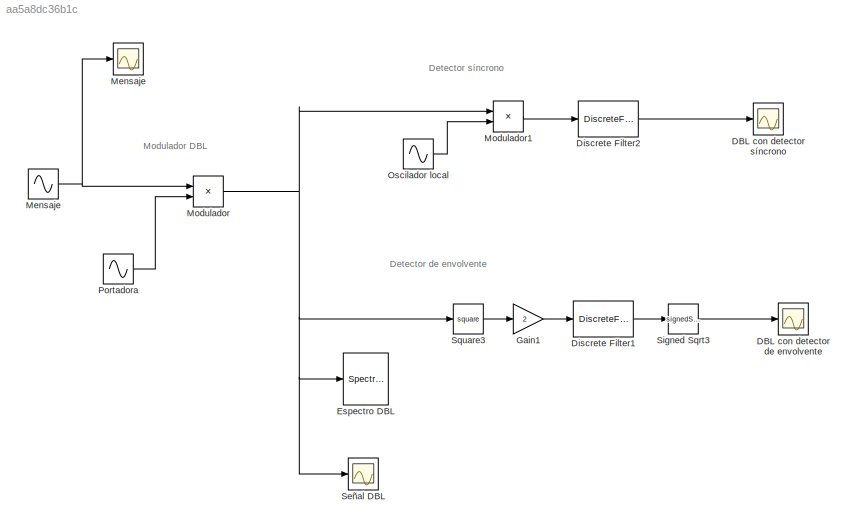
MODEL slx_aa5a8dc36b1c
KIND model
CONFIG AbsTol = auto
CONFIG EnableMultiTasking = off
CONFIG FixedStep = auto
CONFIG MaxStep = auto
CONFIG MinStep = auto
CONFIG RelTol = 1e-3
CONFIG SampleTimeConstraint = Unconstrained
CONFIG SolverName = VariableStepAuto
CONFIG StartTime = 0.0
CONFIG StopTime = 10.0
WORKSPACE source: mxarray member
WORKSPACE fm = 2
WORKSPACE fp = 300
WORKSPACE fs = 5000
BLOCK [Scope] DBL con detector de envolvente
  Floating = off
  NumInputPorts = 1
  Ports = [1]
  ScopeSpecificationString = Simulink.scopes.TimeScopeBlockCfg('CurrentConfiguration', extmgr.ConfigurationSet(extmgr.Configuration('Core','General UI',true),extmgr.Configuration('Core','Source UI',true),extmgr.Configuration('Sources','WiredSimulink',true,'DataLoggingVariableName','ScopeData1'),extmgr.Configuration('Visuals','Time Domain',true,'SerializedDisplays',{struct('MinYLimReal','-0.125','MaxYLimReal','1.12499','YLabel...<+1419ch>
BLOCK [Scope] DBL con detector síncrono
  Floating = off
  NumInputPorts = 1
  Ports = [1]
  ScopeSpecificationString = Simulink.scopes.TimeScopeBlockCfg('CurrentConfiguration', extmgr.ConfigurationSet(extmgr.Configuration('Core','General UI',true),extmgr.Configuration('Core','Source UI',true),extmgr.Configuration('Sources','WiredSimulink',true),extmgr.Configuration('Visuals','Time Domain',true,'SerializedDisplays',{struct('MinYLimReal','-1.1916','MaxYLimReal','1.19087','YLabelReal','','MinYLimMag','0.00000','MaxYL...<+1380ch>
BLOCK [DiscreteFilter] Discrete Filter1
  Denominator = [1	-3.83582554064735	5.52081913662223	-3.53353521946302	0.848555999266477]
  InputPortMap = u0
  InputProcessing = Columns as channels (frame based)
  Numerator = [8.98486146397045e-07	3.59394458558818e-06	5.39091687838227e-06	3.59394458558818e-06	8.98486146397045e-07]
  Ports = [1, 1]
BLOCK [DiscreteFilter] Discrete Filter2
  Denominator = [1	-3.83582554064735	5.52081913662223	-3.53353521946302	0.848555999266477]
  InputPortMap = u0
  InputProcessing = Columns as channels (frame based)
  Numerator = [8.98486146397045e-07	3.59394458558818e-06	5.39091687838227e-06	3.59394458558818e-06	8.98486146397045e-07]
  Ports = [1, 1]
BLOCK [SpectrumAnalyzer] Espectro DBL
  Ports = [1]
  ScopeSpecificationString = spbscopes.SpectrumAnalyzerBlockCfg('CurrentConfiguration', extmgr.ConfigurationSet(extmgr.Configuration('Core','General UI',true),extmgr.Configuration('Core','Source UI',true),extmgr.Configuration('Sources','WiredSimulink',true),extmgr.Configuration('Sources','SPTool',false),extmgr.Configuration('Sources','File',false),extmgr.Configuration('Sources','Workspace',false),extmgr.Configuration('Sources...<+3484ch>
BLOCK [Gain] Gain1
  Gain = 2
BLOCK [Scope] Mensaje
  Floating = off
  NumInputPorts = 1
  Ports = [1]
  ScopeSpecificationString = Simulink.scopes.TimeScopeBlockCfg('CurrentConfiguration', extmgr.ConfigurationSet(extmgr.Configuration('Core','General UI',true),extmgr.Configuration('Core','Source UI',true),extmgr.Configuration('Sources','WiredSimulink',true,'DataLoggingVariableName','ScopeData4'),extmgr.Configuration('Visuals','Time Domain',true,'SerializedDisplays',{struct('MinYLimReal','-1.25','MaxYLimReal','1.25','YLabelReal...<+1384ch>
BLOCK [Sin] Mensaje 
  Frequency = 2*pi*fm
  Ports = [0, 1]
  SampleTime = 1/fs
BLOCK [Product] Modulador
  OutDataTypeStr = Inherit: Same as first input
  Ports = [2, 1]
BLOCK [Product] Modulador1
  OutDataTypeStr = Inherit: Same as first input
  Ports = [2, 1]
BLOCK [Sin] Oscilador local
  Amplitude = 2
  Frequency = 2*pi*fp
  Ports = [0, 1]
  SampleTime = 1/fs
BLOCK [Sin] Portadora 
  Frequency = 2*pi*fp
  Ports = [0, 1]
  SampleTime = 1/fs
BLOCK [Scope] Señal DBL
  Floating = off
  NumInputPorts = 1
  Ports = [1]
  ScopeSpecificationString = Simulink.scopes.TimeScopeBlockCfg('CurrentConfiguration', extmgr.ConfigurationSet(extmgr.Configuration('Core','General UI',true),extmgr.Configuration('Core','Source UI',true),extmgr.Configuration('Sources','WiredSimulink',true,'DataLoggingVariableName','ScopeData2'),extmgr.Configuration('Visuals','Time Domain',true,'SerializedDisplays',{struct('MinYLimReal','-1.18873','MaxYLimReal','1.18873','YLab...<+1367ch>
BLOCK [Sqrt] Signed Sqrt3
  Operator = signedSqrt
BLOCK [Math] Square3
  Operator = square
  Ports = [1, 1]
ANNOTATION (root): Detector de envolvente
ANNOTATION (root): Detector síncrono
ANNOTATION (root): Modulador DBL
LINE Discrete Filter1:1 -> Signed Sqrt3:1
LINE Discrete Filter2:1 -> DBL con detector síncrono:1
LINE Gain1:1 -> Discrete Filter1:1
NET Mensaje :1 -> Mensaje:1, Modulador:1
LINE Modulador1:1 -> Discrete Filter2:1
NET Modulador:1 -> Espectro DBL:1, Modulador1:1, Señal DBL:1, Square3:1
LINE Oscilador local:1 -> Modulador1:2
LINE Portadora :1 -> Modulador:2
LINE Signed Sqrt3:1 -> DBL con detector de envolvente:1
LINE Square3:1 -> Gain1:1
note: NET lines group one-source signal fan-out (src -> all destinations, sorted); 1:1 wires keep LINE
